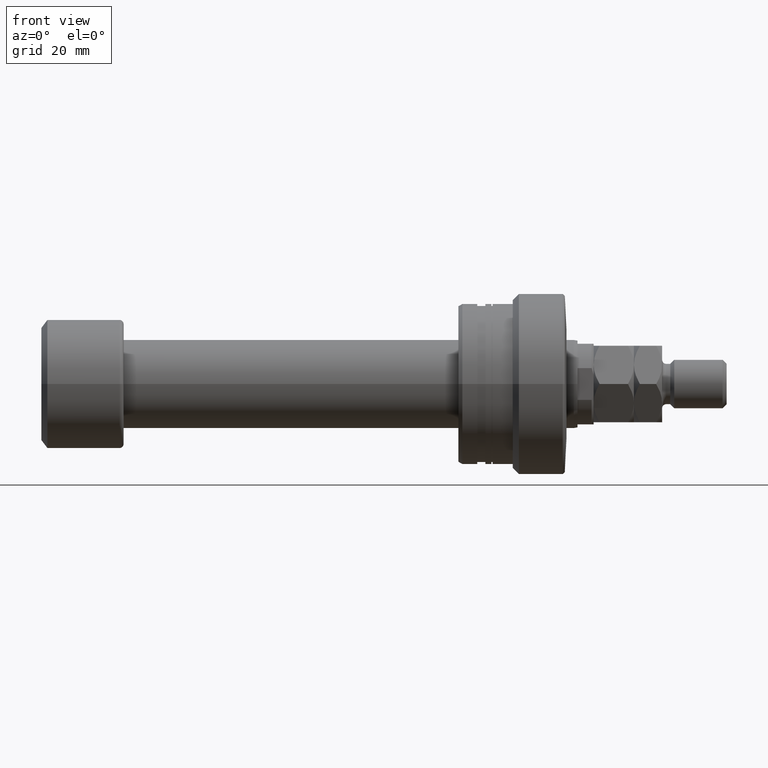
[diagram: clean part render]
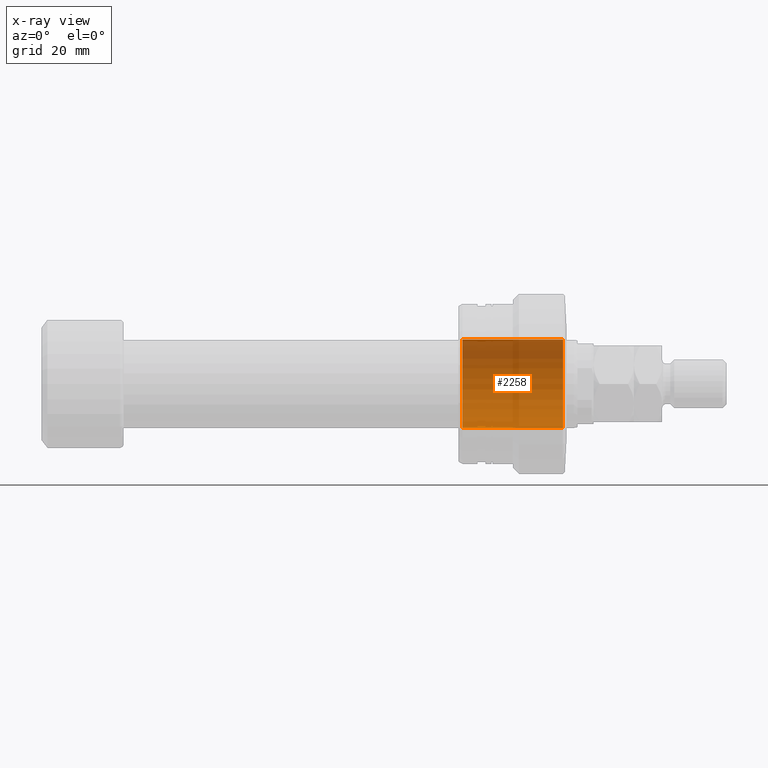
[diagram: x-ray — body ghosted, one internal face saturated and labeled with its STEP entity id]
A machine part, front view, then the same camera in x-ray: the body is ghosted and one INTERNAL B-rep face — a face not visible from any outside direction — is saturated and labeled: STEP entity #2258.
In plain terms, the highlighted cylindrical surface (partial cylindrical patch) has radius 11 mm, axis along (1, 0, 0).
Its self-contained STEP definition (entity closure, byte-faithful):
#6 = ORIENTED_EDGE ( 'NONE', *, *, #1169, .T. ) ;
#18 = EDGE_CURVE ( 'NONE', #2019, #2910, #3641, .T. ) ;
#109 = CARTESIAN_POINT ( 'NONE',  ( -1.500000000000000000, 0.000000000000000000, -11.00000000000000000 ) ) ;
#141 = VECTOR ( 'NONE', #2602, 1000.000000000000000 ) ;
#203 = CARTESIAN_POINT ( 'NONE',  ( -58.61269837220807233, 1.347111479062088405E-15, 11.00000000000000000 ) ) ;
#338 = CIRCLE ( 'NONE', #3664, 11.00000000000000000 ) ;
#449 = CARTESIAN_POINT ( 'NONE',  ( -26.49999999999999645, 0.000000000000000000, 0.000000000000000000 ) ) ;
#527 = AXIS2_PLACEMENT_3D ( 'NONE', #449, #1356, #3496 ) ;
#682 = CARTESIAN_POINT ( 'NONE',  ( -26.49999999999999645, 1.347111479062088405E-15, 11.00000000000000000 ) ) ;
#757 = CARTESIAN_POINT ( 'NONE',  ( -1.500000000000000000, 1.347111479062088405E-15, 11.00000000000000000 ) ) ;
#1135 = CYLINDRICAL_SURFACE ( 'NONE', #3078, 11.00000000000000000 ) ;
#1169 = EDGE_CURVE ( 'NONE', #2909, #2910, #338, .T. ) ;
#1356 = DIRECTION ( 'NONE',  ( -1.000000000000000000, -0.000000000000000000, -0.000000000000000000 ) ) ;
#1402 = DIRECTION ( 'NONE',  ( 1.000000000000000000, -0.000000000000000000, -0.000000000000000000 ) ) ;
#1453 = ORIENTED_EDGE ( 'NONE', *, *, #18, .F. ) ;
#1593 = DIRECTION ( 'NONE',  ( 1.000000000000000000, 0.000000000000000000, 0.000000000000000000 ) ) ;
#1613 = LINE ( 'NONE', #2626, #141 ) ;
#1749 = CIRCLE ( 'NONE', #527, 11.00000000000000000 ) ;
#1824 = EDGE_LOOP ( 'NONE', ( #1453, #2956, #3272, #6 ) ) ;
#2019 = VERTEX_POINT ( 'NONE', #682 ) ;
#2060 = VERTEX_POINT ( 'NONE', #3436 ) ;
#2258 = ADVANCED_FACE ( 'NONE', ( #3236 ), #1135, .F. ) ;
#2288 = VECTOR ( 'NONE', #1402, 1000.000000000000000 ) ;
#2366 = DIRECTION ( 'NONE',  ( 1.000000000000000000, -0.000000000000000000, -0.000000000000000000 ) ) ;
#2602 = DIRECTION ( 'NONE',  ( 1.000000000000000000, -0.000000000000000000, -0.000000000000000000 ) ) ;
#2626 = CARTESIAN_POINT ( 'NONE',  ( -58.61269837220807233, 0.000000000000000000, -11.00000000000000000 ) ) ;
#2821 = DIRECTION ( 'NONE',  ( 0.000000000000000000, 0.000000000000000000, -1.000000000000000000 ) ) ;
#2909 = VERTEX_POINT ( 'NONE', #109 ) ;
#2910 = VERTEX_POINT ( 'NONE', #757 ) ;
#2956 = ORIENTED_EDGE ( 'NONE', *, *, #3884, .T. ) ;
#3078 = AXIS2_PLACEMENT_3D ( 'NONE', #3905, #2366, #3627 ) ;
#3236 = FACE_OUTER_BOUND ( 'NONE', #1824, .T. ) ;
#3272 = ORIENTED_EDGE ( 'NONE', *, *, #3930, .T. ) ;
#3416 = CARTESIAN_POINT ( 'NONE',  ( -1.500000000000000000, 0.000000000000000000, 0.000000000000000000 ) ) ;
#3436 = CARTESIAN_POINT ( 'NONE',  ( -26.49999999999999645, 0.000000000000000000, -11.00000000000000000 ) ) ;
#3496 = DIRECTION ( 'NONE',  ( 0.000000000000000000, 0.000000000000000000, 1.000000000000000000 ) ) ;
#3627 = DIRECTION ( 'NONE',  ( 0.000000000000000000, 0.000000000000000000, -1.000000000000000000 ) ) ;
#3641 = LINE ( 'NONE', #203, #2288 ) ;
#3664 = AXIS2_PLACEMENT_3D ( 'NONE', #3416, #1593, #2821 ) ;
#3884 = EDGE_CURVE ( 'NONE', #2019, #2060, #1749, .T. ) ;
#3905 = CARTESIAN_POINT ( 'NONE',  ( -58.61269837220807233, 0.000000000000000000, 0.000000000000000000 ) ) ;
#3930 = EDGE_CURVE ( 'NONE', #2060, #2909, #1613, .T. ) ;